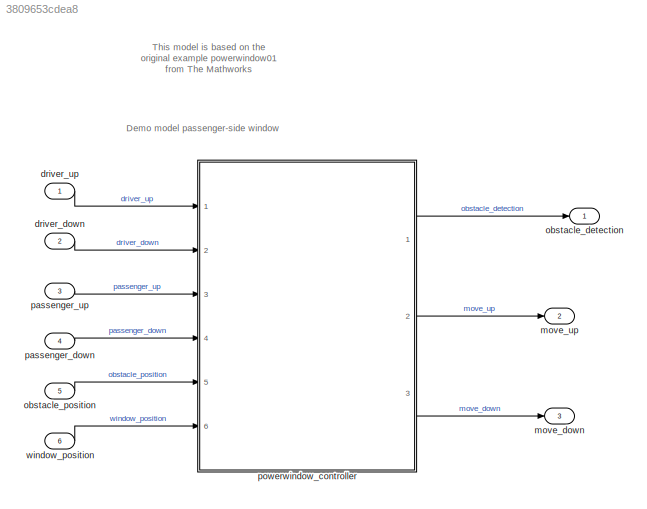
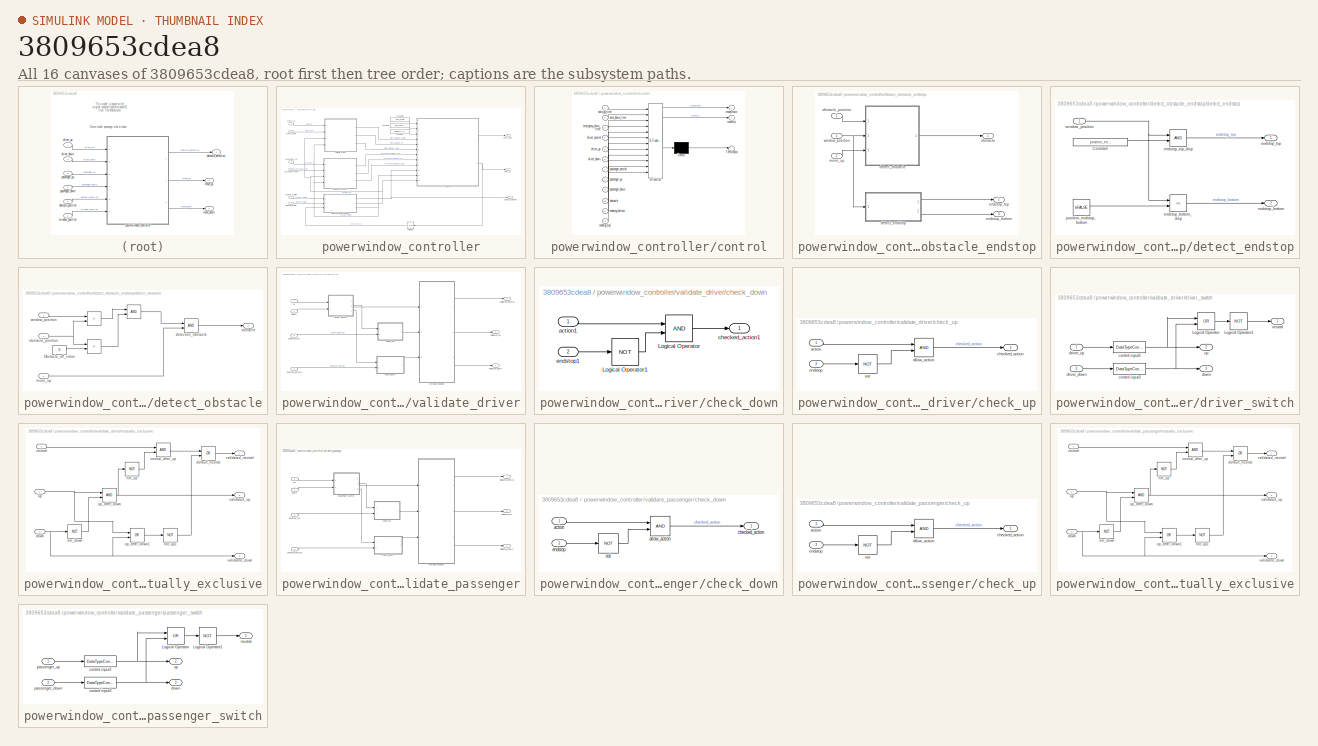
[diagram: thumbnail index - all 16 canvases of the model, root first then tree order]
MODEL slx_3809653cdea8
KIND model
CONFIG AbsTol = auto
CONFIG EnableMultiTasking = off
CONFIG FixedStep = 0.01
CONFIG MaxStep = auto
CONFIG MinStep = auto
CONFIG RelTol = 1e-3
CONFIG SampleTimeConstraint = Unconstrained
CONFIG Solver = FixedStepDiscrete
CONFIG SolverName = FixedStepDiscrete
CONFIG StartTime = 0.0
CONFIG StopTime = 20.0
BLOCK [Inport] driver_down
  OutMax = 1
  OutMin = 0
  Port = 2
BLOCK [Inport] driver_up
  OutMax = 1
  OutMin = 0
BLOCK [Outport] move_down
  OutMax = 1
  OutMin = 0
  Port = 3
  VectorParamsAs1DForOutWhenUnconnected = off
BLOCK [Outport] move_up
  OutMax = 1
  OutMin = 0
  Port = 2
  VectorParamsAs1DForOutWhenUnconnected = off
BLOCK [Outport] obstacle_detection
  OutMax = 1
  OutMin = 0
  VectorParamsAs1DForOutWhenUnconnected = off
BLOCK [Inport] obstacle_position
  OutDataTypeStr = fixdt(0,16,0.001,0)
  OutMax = 0.45
  OutMin = 0
  Port = 5
BLOCK [Inport] passenger_down
  OutMax = 1
  OutMin = 0
  Port = 4
BLOCK [Inport] passenger_up
  OutMax = 1
  OutMin = 0
  Port = 3
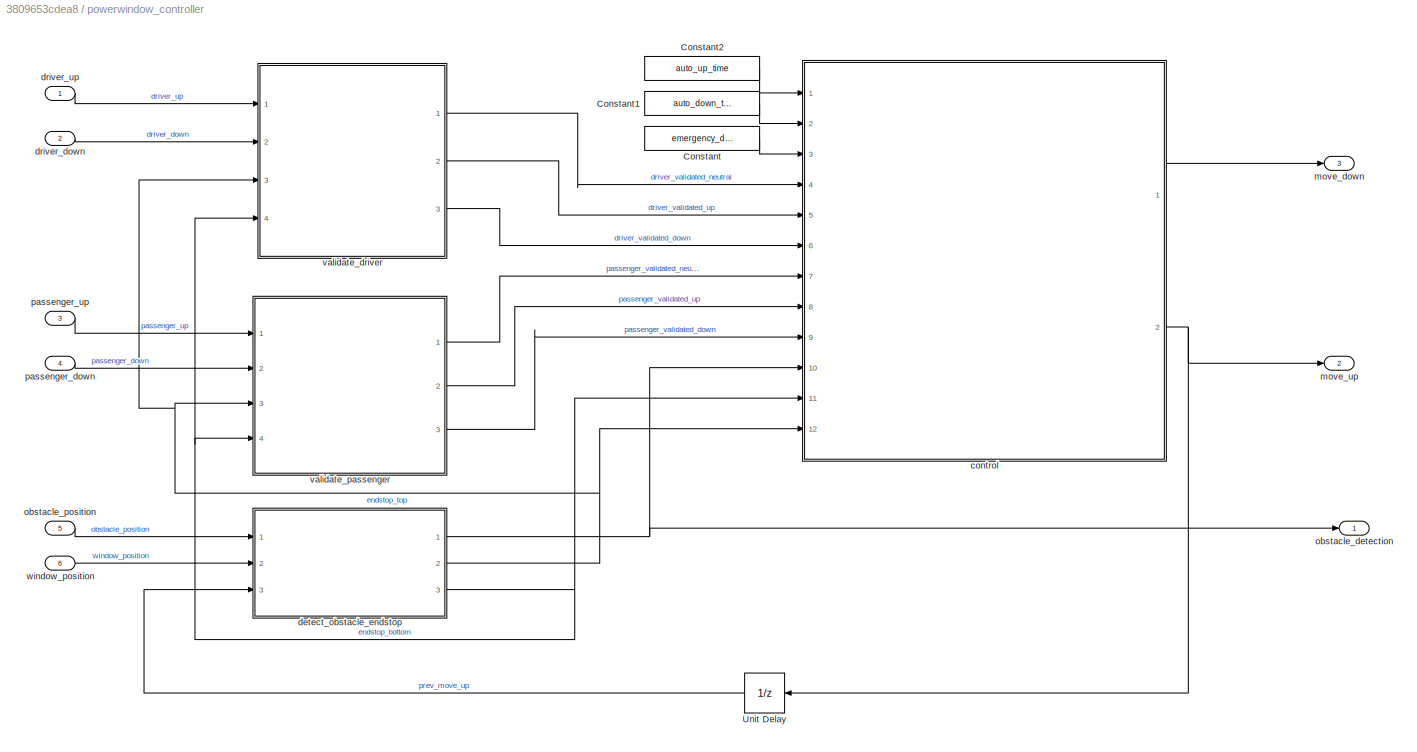
BLOCK [SubSystem] powerwindow_controller
  Ports = [6, 3]
  RTWFcnName = powerwindow_controller
  RTWFcnNameOpts = User specified
  RTWFileNameOpts = Use function name
  RTWSystemCode = Nonreusable function
BLOCK [Constant] powerwindow_controller/Constant
  OutDataTypeStr = uint8
  OutMax = 255
  OutMin = 0
  Value = emergency_down_time
BLOCK [Constant] powerwindow_controller/Constant1
  OutDataTypeStr = uint8
  OutMax = 255
  OutMin = 0
  Value = auto_down_time
BLOCK [Constant] powerwindow_controller/Constant2
  OutDataTypeStr = uint8
  OutMax = 255
  OutMin = 0
  Value = auto_up_time
BLOCK [UnitDelay] powerwindow_controller/Unit Delay
  HasFrameUpgradeWarning = on
  SampleTime = -1
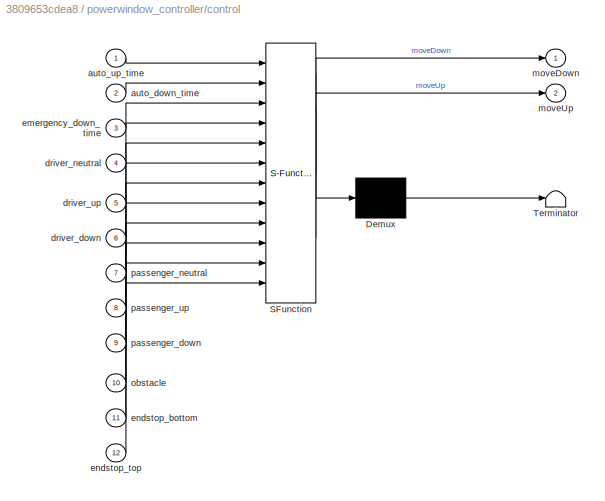
BLOCK [SubSystem] powerwindow_controller/control
  ErrorFcn = Stateflow.Translate.translate
  FunctionInterfaceSpec = Allow arguments
  PermitHierarchicalResolution = ExplicitOnly
  Ports = [12, 2]
  SFBlockType = Chart
BLOCK [Demux] powerwindow_controller/control/ Demux 
  Outputs = 1
  Ports = [1, 1]
BLOCK [S-Function] powerwindow_controller/control/ SFunction 
  EnableBusSupport = off
  FunctionName = sf_sfun
  PortCounts = [12 3]
  Ports = [12, 3]
  SFcnIsStateOwnerBlock = off
  SFunctionDeploymentMode = off
  Tag = Stateflow S-Function powerwindow_ec 1
BLOCK [Terminator] powerwindow_controller/control/ Terminator 
BLOCK [Inport] powerwindow_controller/control/auto_down_time
  Port = 2
BLOCK [Inport] powerwindow_controller/control/auto_up_time
BLOCK [Inport] powerwindow_controller/control/driver_down
  Port = 6
BLOCK [Inport] powerwindow_controller/control/driver_neutral
  Port = 4
BLOCK [Inport] powerwindow_controller/control/driver_up
  Port = 5
BLOCK [Inport] powerwindow_controller/control/emergency_down_time
  Port = 3
BLOCK [Inport] powerwindow_controller/control/endstop_bottom
  Port = 11
BLOCK [Inport] powerwindow_controller/control/endstop_top
  Port = 12
BLOCK [Outport] powerwindow_controller/control/moveDown
  VectorParamsAs1DForOutWhenUnconnected = off
BLOCK [Outport] powerwindow_controller/control/moveUp
  Port = 2
  VectorParamsAs1DForOutWhenUnconnected = off
BLOCK [Inport] powerwindow_controller/control/obstacle
  Port = 10
BLOCK [Inport] powerwindow_controller/control/passenger_down
  Port = 9
BLOCK [Inport] powerwindow_controller/control/passenger_neutral
  Port = 7
BLOCK [Inport] powerwindow_controller/control/passenger_up
  Port = 8
BLOCK [SubSystem] powerwindow_controller/detect_obstacle_endstop
  AttributesFormatString = %<Description>
  Ports = [3, 3]
  RTWFcnName = detect_obstacle_endstop
  RTWFcnNameOpts = User specified
  RTWFileNameOpts = Use subsystem name
  RTWSystemCode = Nonreusable function
  TreatAsAtomicUnit = on
BLOCK [SubSystem] powerwindow_controller/detect_obstacle_endstop/detect_endstop
  Ports = [1, 2]
BLOCK [Constant] powerwindow_controller/detect_obstacle_endstop/detect_endstop/Constant
  OutDataTypeStr = fixdt(0,16,0.001,0)
  OutMax = 0.45
  OutMin = 0.35
  Value = position_endstop_top
BLOCK [Outport] powerwindow_controller/detect_obstacle_endstop/detect_endstop/endstop_bottom
  Port = 2
  VectorParamsAs1DForOutWhenUnconnected = off
BLOCK [RelationalOperator] powerwindow_controller/detect_obstacle_endstop/detect_endstop/endstop_bottom_disp
  AttributesFormatString = %<Description>
  InputSameDT = off
  Operator = <=
  OutDataTypeStr = boolean
  Ports = [2, 1]
BLOCK [Outport] powerwindow_controller/detect_obstacle_endstop/detect_endstop/endstop_top
  VectorParamsAs1DForOutWhenUnconnected = off
BLOCK [RelationalOperator] powerwindow_controller/detect_obstacle_endstop/detect_endstop/endstop_top_disp
  AttributesFormatString = %<Description>
  InputSameDT = off
  OutDataTypeStr = boolean
  Ports = [2, 1]
BLOCK [Constant] powerwindow_controller/detect_obstacle_endstop/detect_endstop/position_endstop_bottom
  OutDataTypeStr = Inherit: Inherit via back propagation
  Value = bFALSE
BLOCK [Inport] powerwindow_controller/detect_obstacle_endstop/detect_endstop/window_position
BLOCK [SubSystem] powerwindow_controller/detect_obstacle_endstop/detect_obstacle
  Ports = [3, 1]
BLOCK [Logic] powerwindow_controller/detect_obstacle_endstop/detect_obstacle/ 
  AllPortsSameDT = off
  OutDataTypeStr = boolean
  Ports = [2, 1]
BLOCK [RelationalOperator] powerwindow_controller/detect_obstacle_endstop/detect_obstacle/  
  InputSameDT = off
  Operator = >
  OutDataTypeStr = boolean
  Ports = [2, 1]
BLOCK [RelationalOperator] powerwindow_controller/detect_obstacle_endstop/detect_obstacle/   
  InputSameDT = off
  Operator = >
  OutDataTypeStr = boolean
  Ports = [2, 1]
BLOCK [Constant] powerwindow_controller/detect_obstacle_endstop/detect_obstacle/Obstacle_off_value
  OutDataTypeStr = Inherit: Inherit via back propagation
  Value = 0
BLOCK [Logic] powerwindow_controller/detect_obstacle_endstop/detect_obstacle/detection_obstacle
  AllPortsSameDT = off
  AttributesFormatString = %<Description>
  OutDataTypeStr = boolean
  Ports = [2, 1]
BLOCK [Inport] powerwindow_controller/detect_obstacle_endstop/detect_obstacle/move_up
  Port = 3
BLOCK [Outport] powerwindow_controller/detect_obstacle_endstop/detect_obstacle/obstacle
  VectorParamsAs1DForOutWhenUnconnected = off
BLOCK [Inport] powerwindow_controller/detect_obstacle_endstop/detect_obstacle/obstacle_position
BLOCK [Inport] powerwindow_controller/detect_obstacle_endstop/detect_obstacle/window_position
  Port = 2
BLOCK [Outport] powerwindow_controller/detect_obstacle_endstop/endstop_bottom
  Port = 3
  VectorParamsAs1DForOutWhenUnconnected = off
BLOCK [Outport] powerwindow_controller/detect_obstacle_endstop/endstop_top
  Port = 2
  VectorParamsAs1DForOutWhenUnconnected = off
BLOCK [Inport] powerwindow_controller/detect_obstacle_endstop/move_up
  Port = 3
BLOCK [Outport] powerwindow_controller/detect_obstacle_endstop/obstacle
  VectorParamsAs1DForOutWhenUnconnected = off
BLOCK [Inport] powerwindow_controller/detect_obstacle_endstop/obstacle_position
BLOCK [Inport] powerwindow_controller/detect_obstacle_endstop/window_position
  Port = 2
BLOCK [Inport] powerwindow_controller/driver_down
  OutDataTypeStr = boolean
  OutMax = 1
  OutMin = 0
  Port = 2
BLOCK [Inport] powerwindow_controller/driver_up
  OutDataTypeStr = boolean
  OutMax = 1
  OutMin = 0
  PortDimensions = 1
BLOCK [Outport] powerwindow_controller/move_down
  OutDataTypeStr = boolean
  OutMax = 1
  OutMin = 0
  Port = 3
  PortDimensions = 1
  VectorParamsAs1DForOutWhenUnconnected = off
BLOCK [Outport] powerwindow_controller/move_up
  OutDataTypeStr = boolean
  OutMax = 1
  OutMin = 0
  Port = 2
  PortDimensions = 1
  VectorParamsAs1DForOutWhenUnconnected = off
BLOCK [Outport] powerwindow_controller/obstacle_detection
  OutDataTypeStr = boolean
  OutMax = 1
  OutMin = 0
  PortDimensions = 1
  VectorParamsAs1DForOutWhenUnconnected = off
BLOCK [Inport] powerwindow_controller/obstacle_position
  OutDataTypeStr = fixdt(0,16,0.001,0)
  OutMax = 0.45
  OutMin = 0
  Port = 5
  PortDimensions = 1
BLOCK [Inport] powerwindow_controller/passenger_down
  OutDataTypeStr = boolean
  OutMax = 1
  OutMin = 0
  Port = 4
  PortDimensions = 1
BLOCK [Inport] powerwindow_controller/passenger_up
  OutDataTypeStr = boolean
  OutMax = 1
  OutMin = 0
  Port = 3
  PortDimensions = 1
BLOCK [SubSystem] powerwindow_controller/validate_driver
  Ports = [4, 3]
  RTWFcnName = validate_driver
  RTWFcnNameOpts = User specified
  RTWFileNameOpts = Use subsystem name
  RTWSystemCode = Nonreusable function
  TreatAsAtomicUnit = on
BLOCK [SubSystem] powerwindow_controller/validate_driver/check_down
  Ports = [2, 1]
BLOCK [Logic] powerwindow_controller/validate_driver/check_down/Logical Operator
  AllPortsSameDT = off
  OutDataTypeStr = boolean
  Ports = [2, 1]
BLOCK [Logic] powerwindow_controller/validate_driver/check_down/Logical Operator1
  AllPortsSameDT = off
  Inputs = 1
  Operator = NOT
  OutDataTypeStr = boolean
  Ports = [1, 1]
BLOCK [Inport] powerwindow_controller/validate_driver/check_down/action1
BLOCK [Outport] powerwindow_controller/validate_driver/check_down/checked_action1
  VectorParamsAs1DForOutWhenUnconnected = off
BLOCK [Inport] powerwindow_controller/validate_driver/check_down/endstop1
  Port = 2
BLOCK [SubSystem] powerwindow_controller/validate_driver/check_up
  Ports = [2, 1]
BLOCK [Inport] powerwindow_controller/validate_driver/check_up/action
BLOCK [Logic] powerwindow_controller/validate_driver/check_up/allow_action
  AllPortsSameDT = off
  OutDataTypeStr = boolean
  Ports = [2, 1]
BLOCK [Outport] powerwindow_controller/validate_driver/check_up/checked_action
  VectorParamsAs1DForOutWhenUnconnected = off
BLOCK [Inport] powerwindow_controller/validate_driver/check_up/endstop
  Port = 2
BLOCK [Logic] powerwindow_controller/validate_driver/check_up/not
  AllPortsSameDT = off
  Inputs = 1
  Operator = NOT
  OutDataTypeStr = boolean
  Ports = [1, 1]
BLOCK [Inport] powerwindow_controller/validate_driver/down
  OutDataTypeStr = boolean
  Port = 2
  PortDimensions = 1
  SampleTime = [0.01,0]
  SamplingMode = Sample based
  SignalType = real
BLOCK [SubSystem] powerwindow_controller/validate_driver/driver_switch
  Ports = [2, 3]
BLOCK [Logic] powerwindow_controller/validate_driver/driver_switch/Logical Operator
  AllPortsSameDT = off
  Operator = OR
  OutDataTypeStr = boolean
  Ports = [2, 1]
BLOCK [Logic] powerwindow_controller/validate_driver/driver_switch/Logical Operator1
  AllPortsSameDT = off
  Inputs = 1
  Operator = NOT
  OutDataTypeStr = boolean
  Ports = [1, 1]
BLOCK [DataTypeConversion] powerwindow_controller/validate_driver/driver_switch/control input2
  OutDataTypeStr = boolean
BLOCK [DataTypeConversion] powerwindow_controller/validate_driver/driver_switch/control input3
  OutDataTypeStr = boolean
BLOCK [Outport] powerwindow_controller/validate_driver/driver_switch/down
  Port = 3
  VectorParamsAs1DForOutWhenUnconnected = off
BLOCK [Inport] powerwindow_controller/validate_driver/driver_switch/driver_down
  Port = 2
BLOCK [Inport] powerwindow_controller/validate_driver/driver_switch/driver_up
BLOCK [Outport] powerwindow_controller/validate_driver/driver_switch/neutral
  VectorParamsAs1DForOutWhenUnconnected = off
BLOCK [Outport] powerwindow_controller/validate_driver/driver_switch/up
  Port = 2
  VectorParamsAs1DForOutWhenUnconnected = off
BLOCK [Inport] powerwindow_controller/validate_driver/endstop_bottom
  OutDataTypeStr = boolean
  Port = 4
  PortDimensions = 1
  SampleTime = [0.01,0]
  SamplingMode = Sample based
  SignalType = real
BLOCK [Inport] powerwindow_controller/validate_driver/endstop_top
  OutDataTypeStr = boolean
  Port = 3
  PortDimensions = 1
  SampleTime = [0.01,0]
  SamplingMode = Sample based
  SignalType = real
BLOCK [SubSystem] powerwindow_controller/validate_driver/mutually_exclusive
  Ports = [3, 3]
BLOCK [Logic] powerwindow_controller/validate_driver/mutually_exclusive/default_neutral
  AllPortsSameDT = off
  Operator = OR
  OutDataTypeStr = boolean
  Ports = [2, 1]
BLOCK [Inport] powerwindow_controller/validate_driver/mutually_exclusive/down
  Port = 3
BLOCK [Inport] powerwindow_controller/validate_driver/mutually_exclusive/neutral
BLOCK [Logic] powerwindow_controller/validate_driver/mutually_exclusive/neutral_after_up
  AllPortsSameDT = off
  OutDataTypeStr = boolean
  Ports = [2, 1]
BLOCK [Logic] powerwindow_controller/validate_driver/mutually_exclusive/not_down
  AllPortsSameDT = off
  Inputs = 1
  Operator = NOT
  OutDataTypeStr = boolean
  Ports = [1, 1]
BLOCK [Logic] powerwindow_controller/validate_driver/mutually_exclusive/not_up
  AllPortsSameDT = off
  Inputs = 1
  Operator = NOT
  OutDataTypeStr = boolean
  Ports = [1, 1]
BLOCK [Logic] powerwindow_controller/validate_driver/mutually_exclusive/not_up1
  AllPortsSameDT = off
  Inputs = 1
  Operator = NOT
  OutDataTypeStr = boolean
  Ports = [1, 1]
BLOCK [Inport] powerwindow_controller/validate_driver/mutually_exclusive/up
  Port = 2
BLOCK [Logic] powerwindow_controller/validate_driver/mutually_exclusive/up_after_down
  AllPortsSameDT = off
  OutDataTypeStr = boolean
  Ports = [2, 1]
BLOCK [Logic] powerwindow_controller/validate_driver/mutually_exclusive/up_after_down1
  AllPortsSameDT = off
  Operator = OR
  OutDataTypeStr = boolean
  Ports = [2, 1]
BLOCK [Outport] powerwindow_controller/validate_driver/mutually_exclusive/validated_down
  Port = 3
  VectorParamsAs1DForOutWhenUnconnected = off
BLOCK [Outport] powerwindow_controller/validate_driver/mutually_exclusive/validated_neutral
  VectorParamsAs1DForOutWhenUnconnected = off
BLOCK [Outport] powerwindow_controller/validate_driver/mutually_exclusive/validated_up
  Port = 2
  VectorParamsAs1DForOutWhenUnconnected = off
BLOCK [Inport] powerwindow_controller/validate_driver/up
  OutDataTypeStr = boolean
  PortDimensions = 1
  SampleTime = [0.01,0]
  SamplingMode = Sample based
  SignalType = real
BLOCK [Outport] powerwindow_controller/validate_driver/validated_down
  OutDataTypeStr = boolean
  Port = 3
  PortDimensions = 1
  SampleTime = [0.01,0]
  SamplingMode = Sample based
  SignalType = real
  VectorParamsAs1DForOutWhenUnconnected = off
BLOCK [Outport] powerwindow_controller/validate_driver/validated_neutral
  OutDataTypeStr = boolean
  PortDimensions = 1
  SampleTime = [0.01,0]
  SamplingMode = Sample based
  SignalType = real
  VectorParamsAs1DForOutWhenUnconnected = off
BLOCK [Outport] powerwindow_controller/validate_driver/validated_up
  OutDataTypeStr = boolean
  Port = 2
  PortDimensions = 1
  SampleTime = [0.01,0]
  SamplingMode = Sample based
  SignalType = real
  VectorParamsAs1DForOutWhenUnconnected = off
BLOCK [SubSystem] powerwindow_controller/validate_passenger
  Ports = [4, 3]
  RTWFcnName = validate_passenger
  RTWFcnNameOpts = User specified
  RTWFileNameOpts = Use function name
  RTWSystemCode = Nonreusable function
  TreatAsAtomicUnit = on
BLOCK [SubSystem] powerwindow_controller/validate_passenger/check_down
  Ports = [2, 1]
BLOCK [Inport] powerwindow_controller/validate_passenger/check_down/action
BLOCK [Logic] powerwindow_controller/validate_passenger/check_down/allow_action
  AllPortsSameDT = off
  OutDataTypeStr = boolean
  Ports = [2, 1]
BLOCK [Outport] powerwindow_controller/validate_passenger/check_down/checked_action
  VectorParamsAs1DForOutWhenUnconnected = off
BLOCK [Inport] powerwindow_controller/validate_passenger/check_down/endstop
  Port = 2
BLOCK [Logic] powerwindow_controller/validate_passenger/check_down/not
  AllPortsSameDT = off
  Inputs = 1
  Operator = NOT
  OutDataTypeStr = boolean
  Ports = [1, 1]
BLOCK [SubSystem] powerwindow_controller/validate_passenger/check_up
  Ports = [2, 1]
BLOCK [Inport] powerwindow_controller/validate_passenger/check_up/action
BLOCK [Logic] powerwindow_controller/validate_passenger/check_up/allow_action
  AllPortsSameDT = off
  OutDataTypeStr = boolean
  Ports = [2, 1]
BLOCK [Outport] powerwindow_controller/validate_passenger/check_up/checked_action
  VectorParamsAs1DForOutWhenUnconnected = off
BLOCK [Inport] powerwindow_controller/validate_passenger/check_up/endstop
  Port = 2
BLOCK [Logic] powerwindow_controller/validate_passenger/check_up/not
  AllPortsSameDT = off
  Inputs = 1
  Operator = NOT
  OutDataTypeStr = boolean
  Ports = [1, 1]
BLOCK [Inport] powerwindow_controller/validate_passenger/down
  Port = 2
BLOCK [Inport] powerwindow_controller/validate_passenger/endstop_bottom
  Port = 4
BLOCK [Inport] powerwindow_controller/validate_passenger/endstop_top
  Port = 3
BLOCK [SubSystem] powerwindow_controller/validate_passenger/mutually_exclusive
  Ports = [3, 3]
BLOCK [Logic] powerwindow_controller/validate_passenger/mutually_exclusive/default_neutral
  AllPortsSameDT = off
  Operator = OR
  OutDataTypeStr = boolean
  Ports = [2, 1]
BLOCK [Inport] powerwindow_controller/validate_passenger/mutually_exclusive/down
  Port = 3
BLOCK [Inport] powerwindow_controller/validate_passenger/mutually_exclusive/neutral
BLOCK [Logic] powerwindow_controller/validate_passenger/mutually_exclusive/neutral_after_up
  AllPortsSameDT = off
  OutDataTypeStr = boolean
  Ports = [2, 1]
BLOCK [Logic] powerwindow_controller/validate_passenger/mutually_exclusive/not_down
  AllPortsSameDT = off
  Inputs = 1
  Operator = NOT
  OutDataTypeStr = boolean
  Ports = [1, 1]
BLOCK [Logic] powerwindow_controller/validate_passenger/mutually_exclusive/not_up
  AllPortsSameDT = off
  Inputs = 1
  Operator = NOT
  OutDataTypeStr = boolean
  Ports = [1, 1]
BLOCK [Logic] powerwindow_controller/validate_passenger/mutually_exclusive/not_up1
  AllPortsSameDT = off
  Inputs = 1
  Operator = NOT
  OutDataTypeStr = boolean
  Ports = [1, 1]
BLOCK [Inport] powerwindow_controller/validate_passenger/mutually_exclusive/up
  Port = 2
BLOCK [Logic] powerwindow_controller/validate_passenger/mutually_exclusive/up_after_down
  AllPortsSameDT = off
  OutDataTypeStr = boolean
  Ports = [2, 1]
BLOCK [Logic] powerwindow_controller/validate_passenger/mutually_exclusive/up_after_down1
  AllPortsSameDT = off
  Operator = OR
  OutDataTypeStr = boolean
  Ports = [2, 1]
BLOCK [Outport] powerwindow_controller/validate_passenger/mutually_exclusive/validated_down
  Port = 3
  VectorParamsAs1DForOutWhenUnconnected = off
BLOCK [Outport] powerwindow_controller/validate_passenger/mutually_exclusive/validated_neutral
  VectorParamsAs1DForOutWhenUnconnected = off
BLOCK [Outport] powerwindow_controller/validate_passenger/mutually_exclusive/validated_up
  Port = 2
  VectorParamsAs1DForOutWhenUnconnected = off
BLOCK [SubSystem] powerwindow_controller/validate_passenger/passenger_switch
  Ports = [2, 3]
BLOCK [Logic] powerwindow_controller/validate_passenger/passenger_switch/Logical Operator
  AllPortsSameDT = off
  Operator = OR
  OutDataTypeStr = boolean
  Ports = [2, 1]
BLOCK [Logic] powerwindow_controller/validate_passenger/passenger_switch/Logical Operator1
  AllPortsSameDT = off
  Inputs = 1
  Operator = NOT
  OutDataTypeStr = boolean
  Ports = [1, 1]
BLOCK [DataTypeConversion] powerwindow_controller/validate_passenger/passenger_switch/control input2
  OutDataTypeStr = boolean
BLOCK [DataTypeConversion] powerwindow_controller/validate_passenger/passenger_switch/control input3
  OutDataTypeStr = boolean
BLOCK [Outport] powerwindow_controller/validate_passenger/passenger_switch/down
  Port = 3
  VectorParamsAs1DForOutWhenUnconnected = off
BLOCK [Outport] powerwindow_controller/validate_passenger/passenger_switch/neutral
  VectorParamsAs1DForOutWhenUnconnected = off
BLOCK [Inport] powerwindow_controller/validate_passenger/passenger_switch/passenger_down
  Port = 2
BLOCK [Inport] powerwindow_controller/validate_passenger/passenger_switch/passenger_up
BLOCK [Outport] powerwindow_controller/validate_passenger/passenger_switch/up
  Port = 2
  VectorParamsAs1DForOutWhenUnconnected = off
BLOCK [Inport] powerwindow_controller/validate_passenger/up
BLOCK [Outport] powerwindow_controller/validate_passenger/validated_down
  Port = 3
  VectorParamsAs1DForOutWhenUnconnected = off
BLOCK [Outport] powerwindow_controller/validate_passenger/validated_neutral
  VectorParamsAs1DForOutWhenUnconnected = off
BLOCK [Outport] powerwindow_controller/validate_passenger/validated_up
  Port = 2
  VectorParamsAs1DForOutWhenUnconnected = off
BLOCK [Inport] powerwindow_controller/window_position
  OutDataTypeStr = fixdt(0,16,0.001,0)
  OutMax = 0.45
  OutMin = 0
  Port = 6
  PortDimensions = 1
BLOCK [Inport] window_position
  OutDataTypeStr = fixdt(0,16,0.001,0)
  OutMax = 0.45
  OutMin = 0
  Port = 6
ANNOTATION (root): Demo model passenger-side window
ANNOTATION (root): This model is based on the original example powerwindow01 from The Mathworks
LINE driver_down:1 -> powerwindow_controller:2
LINE driver_up:1 -> powerwindow_controller:1
LINE obstacle_position:1 -> powerwindow_controller:5
LINE passenger_down:1 -> powerwindow_controller:4
LINE passenger_up:1 -> powerwindow_controller:3
LINE powerwindow_controller/Constant1:1 -> powerwindow_controller/control:2
LINE powerwindow_controller/Constant2:1 -> powerwindow_controller/control:1
LINE powerwindow_controller/Constant:1 -> powerwindow_controller/control:3
LINE powerwindow_controller/Unit Delay:1 -> powerwindow_controller/detect_obstacle_endstop:3
LINE powerwindow_controller/control:1 -> powerwindow_controller/move_down:1
NET powerwindow_controller/control:2 -> powerwindow_controller/Unit Delay:1, powerwindow_controller/move_up:1
LINE powerwindow_controller/detect_obstacle_endstop/detect_endstop/Constant:1 -> powerwindow_controller/detect_obstacle_endstop/detect_endstop/endstop_top_disp:2
LINE powerwindow_controller/detect_obstacle_endstop/detect_endstop/endstop_bottom_disp:1 -> powerwindow_controller/detect_obstacle_endstop/detect_endstop/endstop_bottom:1
LINE powerwindow_controller/detect_obstacle_endstop/detect_endstop/endstop_top_disp:1 -> powerwindow_controller/detect_obstacle_endstop/detect_endstop/endstop_top:1
LINE powerwindow_controller/detect_obstacle_endstop/detect_endstop/position_endstop_bottom:1 -> powerwindow_controller/detect_obstacle_endstop/detect_endstop/endstop_bottom_disp:2
NET powerwindow_controller/detect_obstacle_endstop/detect_endstop/window_position:1 -> powerwindow_controller/detect_obstacle_endstop/detect_endstop/endstop_bottom_disp:1, powerwindow_controller/detect_obstacle_endstop/detect_endstop/endstop_top_disp:1
LINE powerwindow_controller/detect_obstacle_endstop/detect_endstop:1 -> powerwindow_controller/detect_obstacle_endstop/endstop_top:1
LINE powerwindow_controller/detect_obstacle_endstop/detect_endstop:2 -> powerwindow_controller/detect_obstacle_endstop/endstop_bottom:1
LINE powerwindow_controller/detect_obstacle_endstop/detect_obstacle/   :1 -> powerwindow_controller/detect_obstacle_endstop/detect_obstacle/ :2
LINE powerwindow_controller/detect_obstacle_endstop/detect_obstacle/  :1 -> powerwindow_controller/detect_obstacle_endstop/detect_obstacle/ :1
LINE powerwindow_controller/detect_obstacle_endstop/detect_obstacle/ :1 -> powerwindow_controller/detect_obstacle_endstop/detect_obstacle/detection_obstacle:1
LINE powerwindow_controller/detect_obstacle_endstop/detect_obstacle/Obstacle_off_value:1 -> powerwindow_controller/detect_obstacle_endstop/detect_obstacle/   :2
LINE powerwindow_controller/detect_obstacle_endstop/detect_obstacle/detection_obstacle:1 -> powerwindow_controller/detect_obstacle_endstop/detect_obstacle/obstacle:1
LINE powerwindow_controller/detect_obstacle_endstop/detect_obstacle/move_up:1 -> powerwindow_controller/detect_obstacle_endstop/detect_obstacle/detection_obstacle:2
NET powerwindow_controller/detect_obstacle_endstop/detect_obstacle/obstacle_position:1 -> powerwindow_controller/detect_obstacle_endstop/detect_obstacle/   :1, powerwindow_controller/detect_obstacle_endstop/detect_obstacle/  :2
LINE powerwindow_controller/detect_obstacle_endstop/detect_obstacle/window_position:1 -> powerwindow_controller/detect_obstacle_endstop/detect_obstacle/  :1
LINE powerwindow_controller/detect_obstacle_endstop/detect_obstacle:1 -> powerwindow_controller/detect_obstacle_endstop/obstacle:1
LINE powerwindow_controller/detect_obstacle_endstop/move_up:1 -> powerwindow_controller/detect_obstacle_endstop/detect_obstacle:3
LINE powerwindow_controller/detect_obstacle_endstop/obstacle_position:1 -> powerwindow_controller/detect_obstacle_endstop/detect_obstacle:1
NET powerwindow_controller/detect_obstacle_endstop/window_position:1 -> powerwindow_controller/detect_obstacle_endstop/detect_endstop:1, powerwindow_controller/detect_obstacle_endstop/detect_obstacle:2
NET powerwindow_controller/detect_obstacle_endstop:1 -> powerwindow_controller/control:10, powerwindow_controller/obstacle_detection:1
NET powerwindow_controller/detect_obstacle_endstop:2 -> powerwindow_controller/control:12, powerwindow_controller/validate_driver:3, powerwindow_controller/validate_passenger:3
NET powerwindow_controller/detect_obstacle_endstop:3 -> powerwindow_controller/control:11, powerwindow_controller/validate_driver:4, powerwindow_controller/validate_passenger:4
LINE powerwindow_controller/driver_down:1 -> powerwindow_controller/validate_driver:2
LINE powerwindow_controller/driver_up:1 -> powerwindow_controller/validate_driver:1
LINE powerwindow_controller/obstacle_position:1 -> powerwindow_controller/detect_obstacle_endstop:1
LINE powerwindow_controller/passenger_down:1 -> powerwindow_controller/validate_passenger:2
LINE powerwindow_controller/passenger_up:1 -> powerwindow_controller/validate_passenger:1
LINE powerwindow_controller/validate_driver/check_down/Logical Operator1:1 -> powerwindow_controller/validate_driver/check_down/Logical Operator:2
LINE powerwindow_controller/validate_driver/check_down/Logical Operator:1 -> powerwindow_controller/validate_driver/check_down/checked_action1:1
LINE powerwindow_controller/validate_driver/check_down/action1:1 -> powerwindow_controller/validate_driver/check_down/Logical Operator:1
LINE powerwindow_controller/validate_driver/check_down/endstop1:1 -> powerwindow_controller/validate_driver/check_down/Logical Operator1:1
LINE powerwindow_controller/validate_driver/check_down:1 -> powerwindow_controller/validate_driver/mutually_exclusive:3
LINE powerwindow_controller/validate_driver/check_up/action:1 -> powerwindow_controller/validate_driver/check_up/allow_action:1
LINE powerwindow_controller/validate_driver/check_up/allow_action:1 -> powerwindow_controller/validate_driver/check_up/checked_action:1
LINE powerwindow_controller/validate_driver/check_up/endstop:1 -> powerwindow_controller/validate_driver/check_up/not:1
LINE powerwindow_controller/validate_driver/check_up/not:1 -> powerwindow_controller/validate_driver/check_up/allow_action:2
LINE powerwindow_controller/validate_driver/check_up:1 -> powerwindow_controller/validate_driver/mutually_exclusive:2
LINE powerwindow_controller/validate_driver/down:1 -> powerwindow_controller/validate_driver/driver_switch:2
LINE powerwindow_controller/validate_driver/driver_switch/Logical Operator1:1 -> powerwindow_controller/validate_driver/driver_switch/neutral:1
LINE powerwindow_controller/validate_driver/driver_switch/Logical Operator:1 -> powerwindow_controller/validate_driver/driver_switch/Logical Operator1:1
NET powerwindow_controller/validate_driver/driver_switch/control input2:1 -> powerwindow_controller/validate_driver/driver_switch/Logical Operator:1, powerwindow_controller/validate_driver/driver_switch/up:1
NET powerwindow_controller/validate_driver/driver_switch/control input3:1 -> powerwindow_controller/validate_driver/driver_switch/Logical Operator:2, powerwindow_controller/validate_driver/driver_switch/down:1
LINE powerwindow_controller/validate_driver/driver_switch/driver_down:1 -> powerwindow_controller/validate_driver/driver_switch/control input3:1
LINE powerwindow_controller/validate_driver/driver_switch/driver_up:1 -> powerwindow_controller/validate_driver/driver_switch/control input2:1
LINE powerwindow_controller/validate_driver/driver_switch:1 -> powerwindow_controller/validate_driver/mutually_exclusive:1
LINE powerwindow_controller/validate_driver/driver_switch:2 -> powerwindow_controller/validate_driver/check_up:1
LINE powerwindow_controller/validate_driver/driver_switch:3 -> powerwindow_controller/validate_driver/check_down:1
LINE powerwindow_controller/validate_driver/endstop_bottom:1 -> powerwindow_controller/validate_driver/check_down:2
LINE powerwindow_controller/validate_driver/endstop_top:1 -> powerwindow_controller/validate_driver/check_up:2
LINE powerwindow_controller/validate_driver/mutually_exclusive/default_neutral:1 -> powerwindow_controller/validate_driver/mutually_exclusive/validated_neutral:1
NET powerwindow_controller/validate_driver/mutually_exclusive/down:1 -> powerwindow_controller/validate_driver/mutually_exclusive/not_down:1, powerwindow_controller/validate_driver/mutually_exclusive/up_after_down1:2, powerwindow_controller/validate_driver/mutually_exclusive/validated_down:1
LINE powerwindow_controller/validate_driver/mutually_exclusive/neutral:1 -> powerwindow_controller/validate_driver/mutually_exclusive/neutral_after_up:1
LINE powerwindow_controller/validate_driver/mutually_exclusive/neutral_after_up:1 -> powerwindow_controller/validate_driver/mutually_exclusive/default_neutral:1
LINE powerwindow_controller/validate_driver/mutually_exclusive/not_down:1 -> powerwindow_controller/validate_driver/mutually_exclusive/up_after_down:2
LINE powerwindow_controller/validate_driver/mutually_exclusive/not_up1:1 -> powerwindow_controller/validate_driver/mutually_exclusive/default_neutral:2
LINE powerwindow_controller/validate_driver/mutually_exclusive/not_up:1 -> powerwindow_controller/validate_driver/mutually_exclusive/neutral_after_up:2
NET powerwindow_controller/validate_driver/mutually_exclusive/up:1 -> powerwindow_controller/validate_driver/mutually_exclusive/up_after_down1:1, powerwindow_controller/validate_driver/mutually_exclusive/up_after_down:1
LINE powerwindow_controller/validate_driver/mutually_exclusive/up_after_down1:1 -> powerwindow_controller/validate_driver/mutually_exclusive/not_up1:1
NET powerwindow_controller/validate_driver/mutually_exclusive/up_after_down:1 -> powerwindow_controller/validate_driver/mutually_exclusive/not_up:1, powerwindow_controller/validate_driver/mutually_exclusive/validated_up:1
LINE powerwindow_controller/validate_driver/mutually_exclusive:1 -> powerwindow_controller/validate_driver/validated_neutral:1
LINE powerwindow_controller/validate_driver/mutually_exclusive:2 -> powerwindow_controller/validate_driver/validated_up:1
LINE powerwindow_controller/validate_driver/mutually_exclusive:3 -> powerwindow_controller/validate_driver/validated_down:1
LINE powerwindow_controller/validate_driver/up:1 -> powerwindow_controller/validate_driver/driver_switch:1
LINE powerwindow_controller/validate_driver:1 -> powerwindow_controller/control:4
LINE powerwindow_controller/validate_driver:2 -> powerwindow_controller/control:5
LINE powerwindow_controller/validate_driver:3 -> powerwindow_controller/control:6
LINE powerwindow_controller/validate_passenger/check_down/action:1 -> powerwindow_controller/validate_passenger/check_down/allow_action:1
LINE powerwindow_controller/validate_passenger/check_down/allow_action:1 -> powerwindow_controller/validate_passenger/check_down/checked_action:1
LINE powerwindow_controller/validate_passenger/check_down/endstop:1 -> powerwindow_controller/validate_passenger/check_down/not:1
LINE powerwindow_controller/validate_passenger/check_down/not:1 -> powerwindow_controller/validate_passenger/check_down/allow_action:2
LINE powerwindow_controller/validate_passenger/check_down:1 -> powerwindow_controller/validate_passenger/mutually_exclusive:3
LINE powerwindow_controller/validate_passenger/check_up/action:1 -> powerwindow_controller/validate_passenger/check_up/allow_action:1
LINE powerwindow_controller/validate_passenger/check_up/allow_action:1 -> powerwindow_controller/validate_passenger/check_up/checked_action:1
LINE powerwindow_controller/validate_passenger/check_up/endstop:1 -> powerwindow_controller/validate_passenger/check_up/not:1
LINE powerwindow_controller/validate_passenger/check_up/not:1 -> powerwindow_controller/validate_passenger/check_up/allow_action:2
LINE powerwindow_controller/validate_passenger/check_up:1 -> powerwindow_controller/validate_passenger/mutually_exclusive:2
LINE powerwindow_controller/validate_passenger/down:1 -> powerwindow_controller/validate_passenger/passenger_switch:2
LINE powerwindow_controller/validate_passenger/endstop_bottom:1 -> powerwindow_controller/validate_passenger/check_down:2
LINE powerwindow_controller/validate_passenger/endstop_top:1 -> powerwindow_controller/validate_passenger/check_up:2
LINE powerwindow_controller/validate_passenger/mutually_exclusive/default_neutral:1 -> powerwindow_controller/validate_passenger/mutually_exclusive/validated_neutral:1
NET powerwindow_controller/validate_passenger/mutually_exclusive/down:1 -> powerwindow_controller/validate_passenger/mutually_exclusive/not_down:1, powerwindow_controller/validate_passenger/mutually_exclusive/up_after_down1:2, powerwindow_controller/validate_passenger/mutually_exclusive/validated_down:1
LINE powerwindow_controller/validate_passenger/mutually_exclusive/neutral:1 -> powerwindow_controller/validate_passenger/mutually_exclusive/neutral_after_up:1
LINE powerwindow_controller/validate_passenger/mutually_exclusive/neutral_after_up:1 -> powerwindow_controller/validate_passenger/mutually_exclusive/default_neutral:1
LINE powerwindow_controller/validate_passenger/mutually_exclusive/not_down:1 -> powerwindow_controller/validate_passenger/mutually_exclusive/up_after_down:2
LINE powerwindow_controller/validate_passenger/mutually_exclusive/not_up1:1 -> powerwindow_controller/validate_passenger/mutually_exclusive/default_neutral:2
LINE powerwindow_controller/validate_passenger/mutually_exclusive/not_up:1 -> powerwindow_controller/validate_passenger/mutually_exclusive/neutral_after_up:2
NET powerwindow_controller/validate_passenger/mutually_exclusive/up:1 -> powerwindow_controller/validate_passenger/mutually_exclusive/up_after_down1:1, powerwindow_controller/validate_passenger/mutually_exclusive/up_after_down:1
LINE powerwindow_controller/validate_passenger/mutually_exclusive/up_after_down1:1 -> powerwindow_controller/validate_passenger/mutually_exclusive/not_up1:1
NET powerwindow_controller/validate_passenger/mutually_exclusive/up_after_down:1 -> powerwindow_controller/validate_passenger/mutually_exclusive/not_up:1, powerwindow_controller/validate_passenger/mutually_exclusive/validated_up:1
LINE powerwindow_controller/validate_passenger/mutually_exclusive:1 -> powerwindow_controller/validate_passenger/validated_neutral:1
LINE powerwindow_controller/validate_passenger/mutually_exclusive:2 -> powerwindow_controller/validate_passenger/validated_up:1
LINE powerwindow_controller/validate_passenger/mutually_exclusive:3 -> powerwindow_controller/validate_passenger/validated_down:1
LINE powerwindow_controller/validate_passenger/passenger_switch/Logical Operator1:1 -> powerwindow_controller/validate_passenger/passenger_switch/neutral:1
LINE powerwindow_controller/validate_passenger/passenger_switch/Logical Operator:1 -> powerwindow_controller/validate_passenger/passenger_switch/Logical Operator1:1
NET powerwindow_controller/validate_passenger/passenger_switch/control input2:1 -> powerwindow_controller/validate_passenger/passenger_switch/Logical Operator:1, powerwindow_controller/validate_passenger/passenger_switch/up:1
NET powerwindow_controller/validate_passenger/passenger_switch/control input3:1 -> powerwindow_controller/validate_passenger/passenger_switch/Logical Operator:2, powerwindow_controller/validate_passenger/passenger_switch/down:1
LINE powerwindow_controller/validate_passenger/passenger_switch/passenger_down:1 -> powerwindow_controller/validate_passenger/passenger_switch/control input3:1
LINE powerwindow_controller/validate_passenger/passenger_switch/passenger_up:1 -> powerwindow_controller/validate_passenger/passenger_switch/control input2:1
LINE powerwindow_controller/validate_passenger/passenger_switch:1 -> powerwindow_controller/validate_passenger/mutually_exclusive:1
LINE powerwindow_controller/validate_passenger/passenger_switch:2 -> powerwindow_controller/validate_passenger/check_up:1
LINE powerwindow_controller/validate_passenger/passenger_switch:3 -> powerwindow_controller/validate_passenger/check_down:1
LINE powerwindow_controller/validate_passenger/up:1 -> powerwindow_controller/validate_passenger/passenger_switch:1
LINE powerwindow_controller/validate_passenger:1 -> powerwindow_controller/control:7
LINE powerwindow_controller/validate_passenger:2 -> powerwindow_controller/control:8
LINE powerwindow_controller/validate_passenger:3 -> powerwindow_controller/control:9
LINE powerwindow_controller/window_position:1 -> powerwindow_controller/detect_obstacle_endstop:2
LINE powerwindow_controller:1 -> obstacle_detection:1
LINE powerwindow_controller:2 -> move_up:1
LINE powerwindow_controller:3 -> move_down:1
LINE window_position:1 -> powerwindow_controller:6
note: NET lines group one-source signal fan-out (src -> all destinations, sorted); 1:1 wires keep LINE
CHART powerwindow_controller/control states=20 transitions=33
  STATE_LABEL 'safe'
  STATE_LABEL 'driverNeutral\nentry:\nmoveUp = 0;\nmoveDown = 0;'
  STATE_LABEL 'passengerneutral\nentry:\nmoveUp = 0;\nmoveDown = 0;'
  STATE_LABEL 'passengerDown\nentry: moveDown = 1;\nexit:   moveDown = 0;'
  STATE_LABEL 'iniPassengerDown'
  STATE_LABEL 'passengerDown'
  STATE_LABEL 'autoPassengerDown'
  STATE_LABEL 'after(auto_down_time,tick)'
  STATE_LABEL '[passenger_neutral]'
  STATE_LABEL 'passengerUp\nentry: moveUp = 1;\nexit: moveUp = 0;'
  STATE_LABEL 'iniPassengerUp'
  STATE_LABEL 'PassengerUp'
  STATE_LABEL 'autoPassengerUp'
  STATE_LABEL 'after(auto_up_time,tick)'
  STATE_LABEL '[passenger_neutral]'
  STATE_LABEL '[passenger_up]'
  STATE_LABEL '[passenger_down]'
  STATE_LABEL '[passenger_neutral]'
  STATE_LABEL '[passenger_neutral]'
  STATE_LABEL '[endstop_bottom]'
  STATE_LABEL '[endstop_top]'
  STATE_LABEL '[passenger_up]'
  STATE_LABEL '[passenger_down]'
  STATE_LABEL 'driverUp\nentry: moveUp = 1;\nexit: moveUp = 0;'
  STATE_LABEL 'iniDriverUp'
  STATE_LABEL 'DriverUp'
  STATE_LABEL 'autoDriverUp'
  STATE_LABEL 'after(auto_up_time,tick)'
  STATE_LABEL '[driver_neutral]'
  STATE_LABEL 'driverDown\nentry: moveDown = 1;\nexit: moveDown = 0;'
  STATE_LABEL 'iniDriverDown'
  STATE_LABEL 'DriverDown'
  STATE_LABEL 'autoDriverDown'
  STATE_LABEL 'after(auto_down_time,tick)'
  STATE_LABEL '[driver_neutral]'
  STATE_LABEL '[driver_down]'
  STATE_LABEL '[driver_neutral]'
  STATE_LABEL '[endstop_bottom]'
  STATE_LABEL '[driver_neutral]'
  STATE_LABEL '[endstop_top]'
